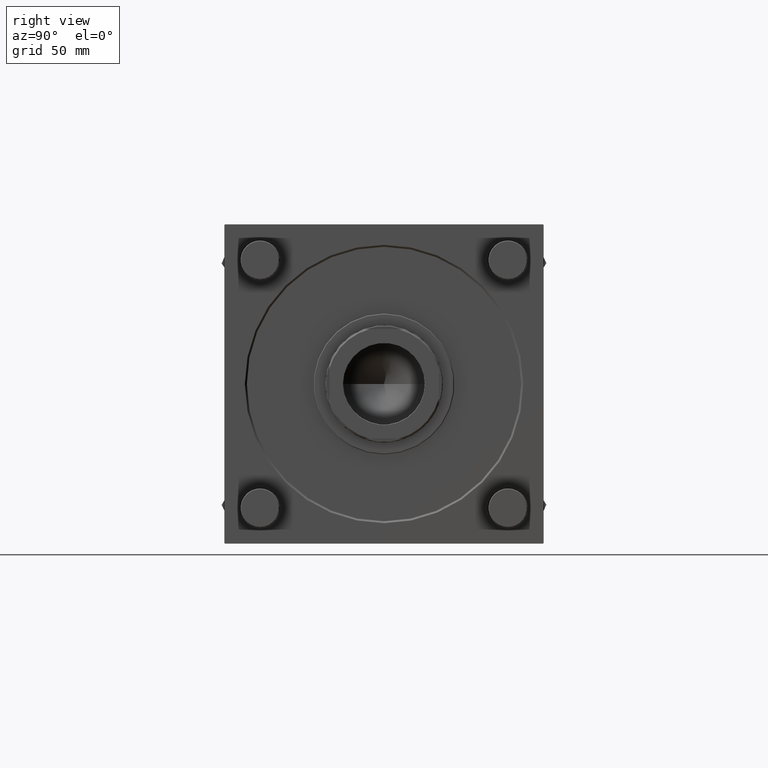
[diagram: clean part render]
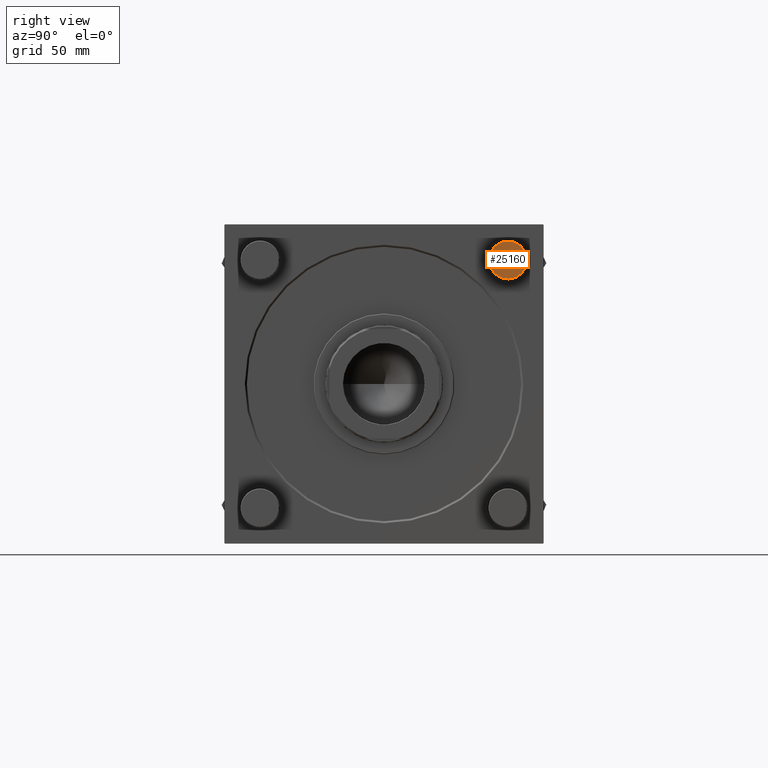
[diagram: same view with one face highlighted and labeled with its STEP entity id]
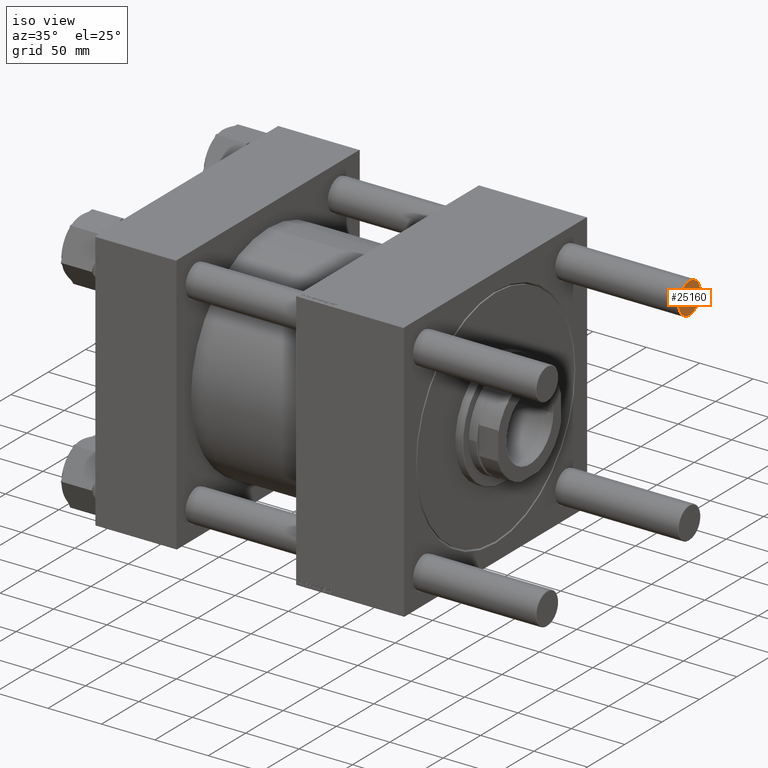
[diagram: same view with one face highlighted and labeled with its STEP entity id]
A machine part, right view. The second image highlights one B-rep face of the part: STEP entity #25160.
A second angle (iso view) of the same face is appended — the face is thin or edge-on in the first view.
In plain terms, the highlighted planar face has unit normal (-1, 0, 0).
Its self-contained STEP definition (entity closure, byte-faithful):
#1823 = DIRECTION ( 'NONE',  ( -0.000000000000000000, -0.000000000000000000, -1.000000000000000000 ) ) ;
#4561 = VERTEX_POINT ( 'NONE', #25302 ) ;
#10761 = AXIS2_PLACEMENT_3D ( 'NONE', #37001, #54931, #54653 ) ;
#15757 = EDGE_CURVE ( 'NONE', #54396, #4561, #17332, .T. ) ;
#17332 = CIRCLE ( 'NONE', #49707, 14.49999999999995914 ) ;
#18583 = CARTESIAN_POINT ( 'NONE',  ( 0.000000000000000000, 0.000000000000000000, 0.000000000000000000 ) ) ;
#19966 = DIRECTION ( 'NONE',  ( 0.000000000000000000, 0.000000000000000000, 1.000000000000000000 ) ) ;
#23768 = DIRECTION ( 'NONE',  ( 1.000000000000000000, 0.000000000000000000, -0.000000000000000000 ) ) ;
#25160 = ADVANCED_FACE ( 'NONE', ( #46604 ), #37934, .F. ) ;
#25302 = CARTESIAN_POINT ( 'NONE',  ( -14.49999999999995914, 1.806354028742343435E-15, 0.000000000000000000 ) ) ;
#28952 = CARTESIAN_POINT ( 'NONE',  ( 0.000000000000000000, 0.000000000000000000, 0.000000000000000000 ) ) ;
#29780 = CARTESIAN_POINT ( 'NONE',  ( 14.49999999999995914, 0.000000000000000000, 0.000000000000000000 ) ) ;
#37001 = CARTESIAN_POINT ( 'NONE',  ( 0.000000000000000000, 0.000000000000000000, 0.000000000000000000 ) ) ;
#37116 = DIRECTION ( 'NONE',  ( 1.000000000000000000, 0.000000000000000000, 0.000000000000000000 ) ) ;
#37934 = PLANE ( 'NONE',  #51692 ) ;
#44018 = ORIENTED_EDGE ( 'NONE', *, *, #52095, .T. ) ;
#44660 = EDGE_LOOP ( 'NONE', ( #51514, #44018 ) ) ;
#46604 = FACE_OUTER_BOUND ( 'NONE', #44660, .T. ) ;
#47717 = CIRCLE ( 'NONE', #10761, 14.49999999999995914 ) ;
#49707 = AXIS2_PLACEMENT_3D ( 'NONE', #18583, #1823, #37116 ) ;
#51514 = ORIENTED_EDGE ( 'NONE', *, *, #15757, .T. ) ;
#51692 = AXIS2_PLACEMENT_3D ( 'NONE', #28952, #19966, #23768 ) ;
#52095 = EDGE_CURVE ( 'NONE', #4561, #54396, #47717, .T. ) ;
#54396 = VERTEX_POINT ( 'NONE', #29780 ) ;
#54653 = DIRECTION ( 'NONE',  ( 1.000000000000000000, 0.000000000000000000, 0.000000000000000000 ) ) ;
#54931 = DIRECTION ( 'NONE',  ( -0.000000000000000000, -0.000000000000000000, -1.000000000000000000 ) ) ;